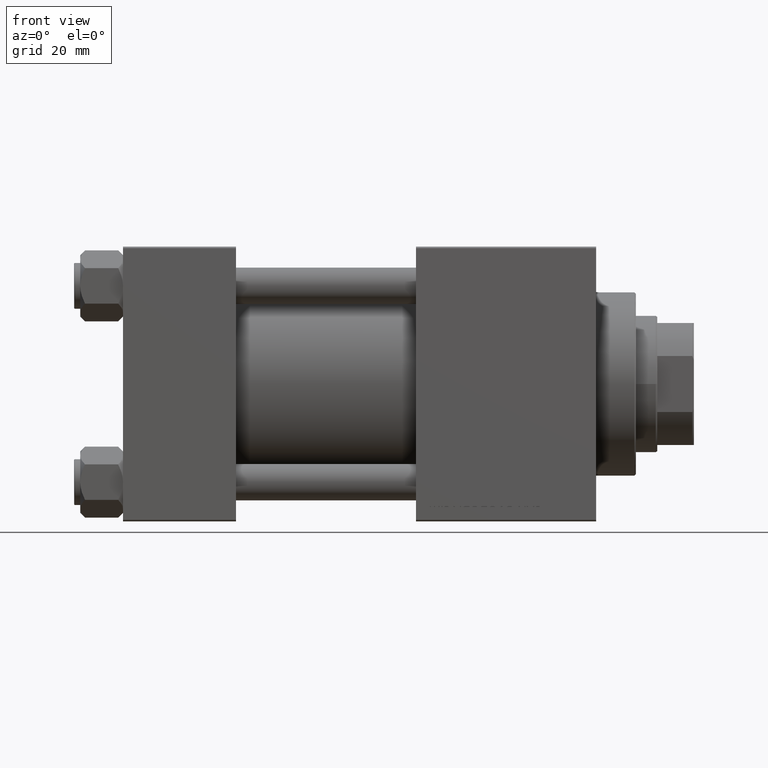
[diagram: clean part render]
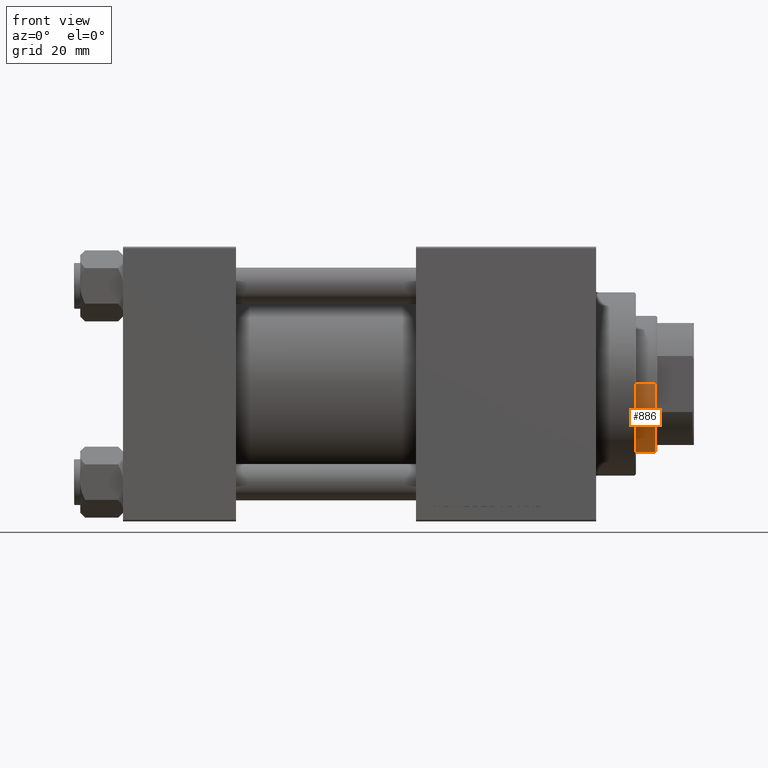
[diagram: same view with one face highlighted and labeled with its STEP entity id]
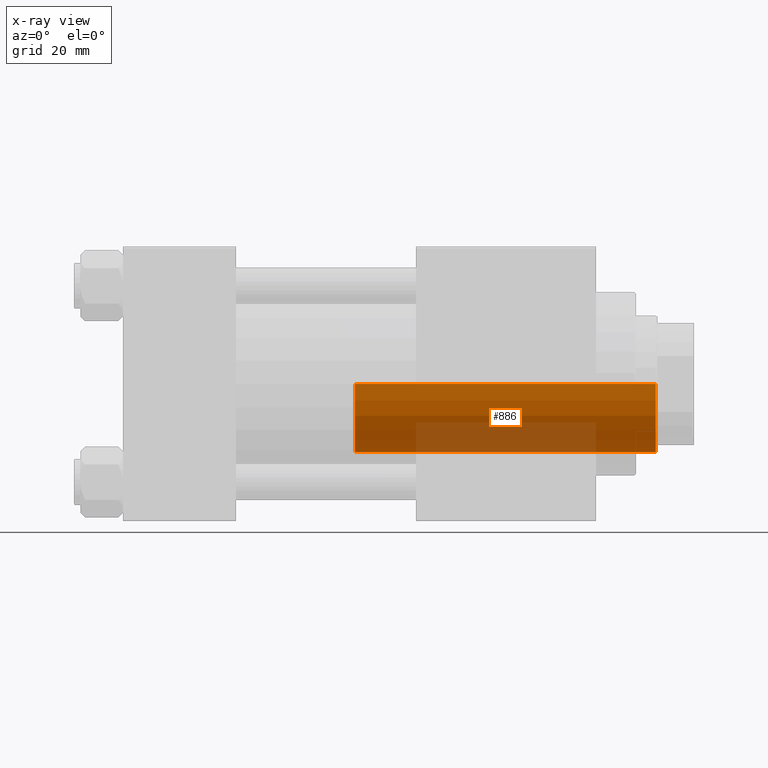
[diagram: x-ray of the same camera — body ghosted, the highlighted face saturated]
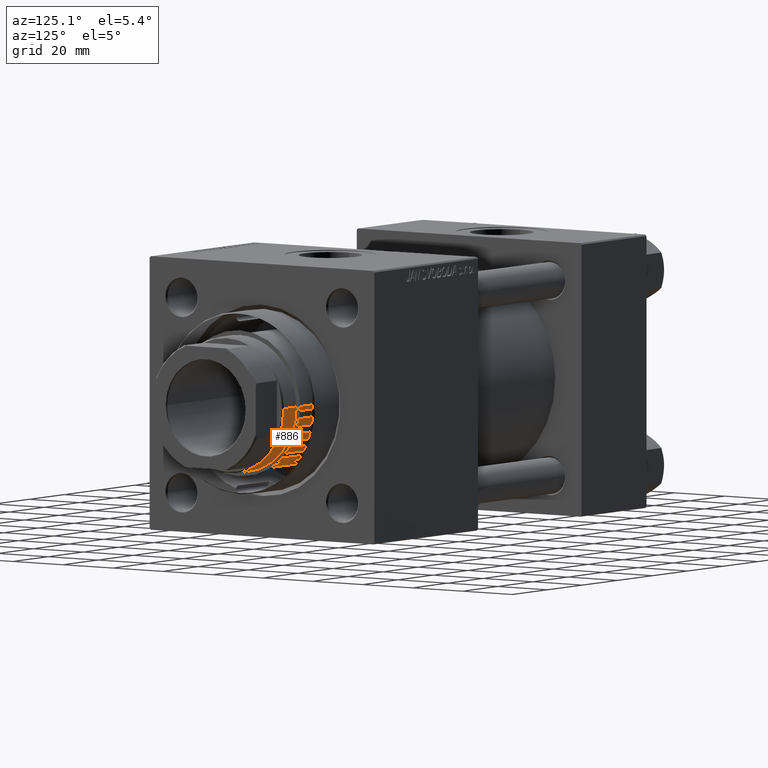
[diagram: same view with one face highlighted and labeled with its STEP entity id]
A machine part, front view. The second image highlights one B-rep face of the part: STEP entity #886.
The next image is the same camera in x-ray: the body ghosted, the highlighted face saturated — about 26% of this face is hidden behind the body in this view.
A second angle (auxiliary view) of the same face is appended — the face is thin or edge-on in the first view.
In plain terms, the highlighted cylindrical surface (partial cylindrical patch) has radius 22.5 mm, axis along (-1, 0, 0).
Its self-contained STEP definition (entity closure, byte-faithful):
#886 = ADVANCED_FACE ( 'NONE', ( #44373 ), #20479, .T. ) ;
#2534 = CIRCLE ( 'NONE', #22040, 22.50000000000000355 ) ;
#7581 = VECTOR ( 'NONE', #26135, 1000.000000000000000 ) ;
#8175 = CARTESIAN_POINT ( 'NONE',  ( -22.50000000000000355, 0.000000000000000000, 39.00000000000000000 ) ) ;
#8651 = EDGE_CURVE ( 'NONE', #24962, #17439, #41106, .T. ) ;
#8953 = ORIENTED_EDGE ( 'NONE', *, *, #19957, .T. ) ;
#9032 = CARTESIAN_POINT ( 'NONE',  ( 0.000000000000000000, 0.000000000000000000, 138.0000000000000000 ) ) ;
#11167 = EDGE_CURVE ( 'NONE', #24962, #46896, #2534, .T. ) ;
#13362 = DIRECTION ( 'NONE',  ( -0.000000000000000000, -0.000000000000000000, -1.000000000000000000 ) ) ;
#13646 = CARTESIAN_POINT ( 'NONE',  ( -22.50000000000000355, 0.000000000000000000, 138.0000000000000000 ) ) ;
#14129 = CARTESIAN_POINT ( 'NONE',  ( 0.000000000000000000, 0.000000000000000000, 137.5000000000000568 ) ) ;
#14433 = CARTESIAN_POINT ( 'NONE',  ( 22.50000000000000355, 2.755455298081545172E-15, 138.0000000000000000 ) ) ;
#14579 = AXIS2_PLACEMENT_3D ( 'NONE', #9032, #13362, #17422 ) ;
#14933 = CIRCLE ( 'NONE', #29573, 22.50000000000000355 ) ;
#15292 = DIRECTION ( 'NONE',  ( 1.000000000000000000, 0.000000000000000000, 0.000000000000000000 ) ) ;
#16423 = VERTEX_POINT ( 'NONE', #40562 ) ;
#17422 = DIRECTION ( 'NONE',  ( -1.000000000000000000, 0.000000000000000000, 0.000000000000000000 ) ) ;
#17439 = VERTEX_POINT ( 'NONE', #8175 ) ;
#19729 = ORIENTED_EDGE ( 'NONE', *, *, #11167, .T. ) ;
#19957 = EDGE_CURVE ( 'NONE', #46896, #16423, #49260, .T. ) ;
#20479 = CYLINDRICAL_SURFACE ( 'NONE', #14579, 22.50000000000000355 ) ;
#21670 = EDGE_CURVE ( 'NONE', #16423, #17439, #14933, .T. ) ;
#22040 = AXIS2_PLACEMENT_3D ( 'NONE', #14129, #29878, #48954 ) ;
#24962 = VERTEX_POINT ( 'NONE', #46370 ) ;
#26135 = DIRECTION ( 'NONE',  ( -0.000000000000000000, -0.000000000000000000, -1.000000000000000000 ) ) ;
#29144 = DIRECTION ( 'NONE',  ( -0.000000000000000000, -0.000000000000000000, -1.000000000000000000 ) ) ;
#29279 = VECTOR ( 'NONE', #29144, 1000.000000000000000 ) ;
#29573 = AXIS2_PLACEMENT_3D ( 'NONE', #38689, #50118, #15292 ) ;
#29878 = DIRECTION ( 'NONE',  ( 0.000000000000000000, 0.000000000000000000, -1.000000000000000000 ) ) ;
#38689 = CARTESIAN_POINT ( 'NONE',  ( 0.000000000000000000, 0.000000000000000000, 39.00000000000000000 ) ) ;
#40562 = CARTESIAN_POINT ( 'NONE',  ( 22.50000000000000355, 2.755455298081545172E-15, 39.00000000000000000 ) ) ;
#41040 = ORIENTED_EDGE ( 'NONE', *, *, #8651, .F. ) ;
#41106 = LINE ( 'NONE', #13646, #29279 ) ;
#43036 = CARTESIAN_POINT ( 'NONE',  ( 22.50000000000000355, 2.755455298081545172E-15, 137.5000000000000568 ) ) ;
#44373 = FACE_OUTER_BOUND ( 'NONE', #48387, .T. ) ;
#46370 = CARTESIAN_POINT ( 'NONE',  ( -22.50000000000000355, 0.000000000000000000, 137.5000000000000568 ) ) ;
#46896 = VERTEX_POINT ( 'NONE', #43036 ) ;
#48387 = EDGE_LOOP ( 'NONE', ( #19729, #8953, #50223, #41040 ) ) ;
#48954 = DIRECTION ( 'NONE',  ( 1.000000000000000000, 0.000000000000000000, 0.000000000000000000 ) ) ;
#49260 = LINE ( 'NONE', #14433, #7581 ) ;
#50118 = DIRECTION ( 'NONE',  ( 0.000000000000000000, 0.000000000000000000, 1.000000000000000000 ) ) ;
#50223 = ORIENTED_EDGE ( 'NONE', *, *, #21670, .T. ) ;